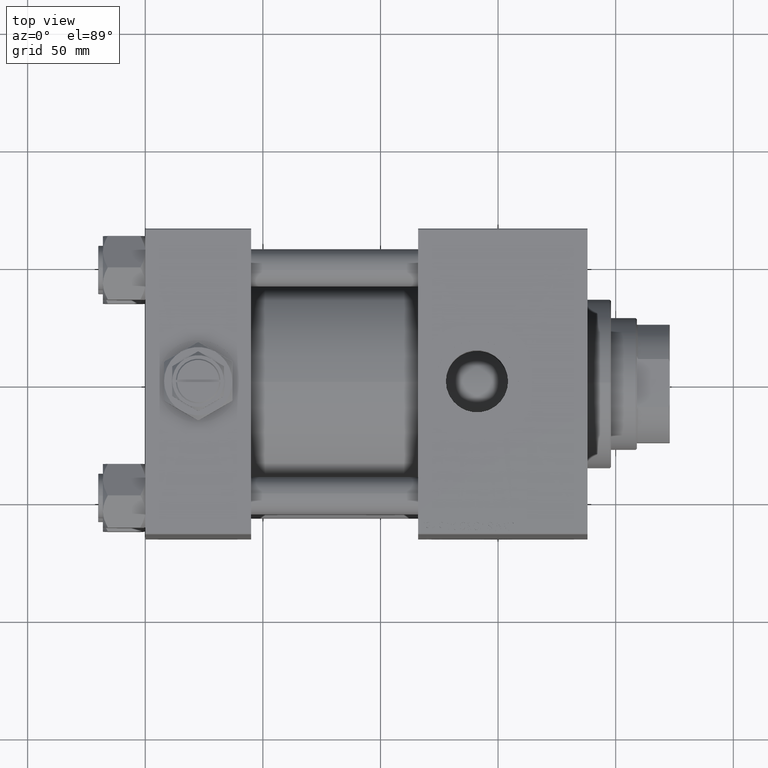
[diagram: clean part render]
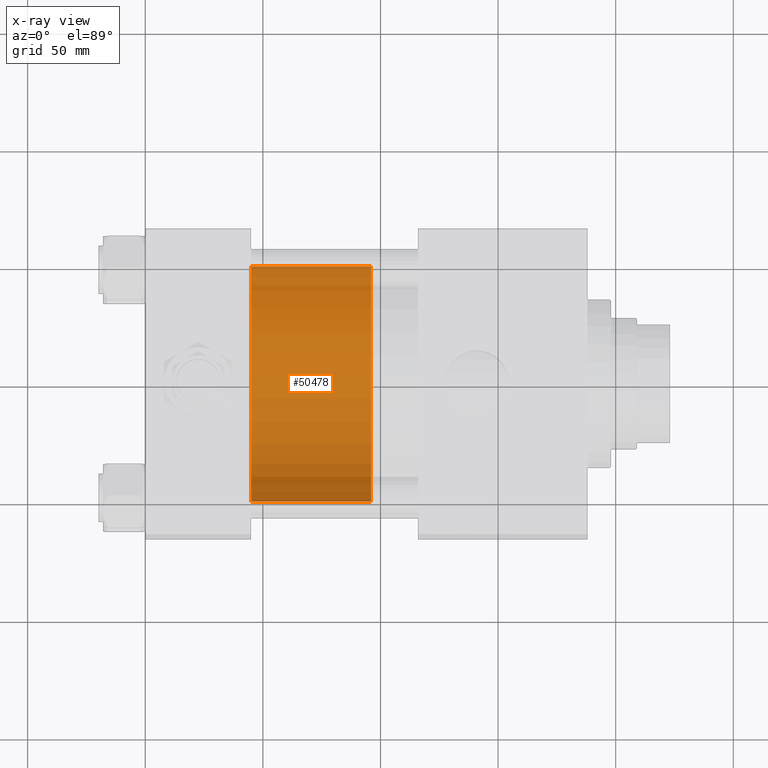
[diagram: x-ray — body ghosted, one internal face saturated and labeled with its STEP entity id]
A machine part, top view, then the same camera in x-ray: the body is ghosted and one INTERNAL B-rep face — a face not visible from any outside direction — is saturated and labeled: STEP entity #50478.
In plain terms, the highlighted cylindrical surface (partial cylindrical patch) has radius 50 mm, axis along (-1, 0, 0).
Its self-contained STEP definition (entity closure, byte-faithful):
#19 = EDGE_LOOP ( 'NONE', ( #13046, #6090, #52466, #29792 ) ) ;
#335 = CARTESIAN_POINT ( 'NONE',  ( 50.00000000000000000, 6.123233995736766085E-15, 51.00000000000000000 ) ) ;
#682 = VERTEX_POINT ( 'NONE', #31292 ) ;
#4112 = DIRECTION ( 'NONE',  ( 0.000000000000000000, 0.000000000000000000, 1.000000000000000000 ) ) ;
#6090 = ORIENTED_EDGE ( 'NONE', *, *, #31722, .T. ) ;
#7170 = AXIS2_PLACEMENT_3D ( 'NONE', #23043, #15014, #43143 ) ;
#7400 = CARTESIAN_POINT ( 'NONE',  ( -50.00000000000000000, 0.000000000000000000, 0.000000000000000000 ) ) ;
#7435 = DIRECTION ( 'NONE',  ( -0.000000000000000000, -0.000000000000000000, -1.000000000000000000 ) ) ;
#7683 = EDGE_CURVE ( 'NONE', #682, #29325, #10569, .T. ) ;
#7699 = LINE ( 'NONE', #28048, #12630 ) ;
#8140 = CARTESIAN_POINT ( 'NONE',  ( 0.000000000000000000, 0.000000000000000000, 51.00000000000000000 ) ) ;
#10569 = CIRCLE ( 'NONE', #7170, 50.00000000000000000 ) ;
#10668 = CARTESIAN_POINT ( 'NONE',  ( -50.00000000000000000, 0.000000000000000000, 51.00000000000000000 ) ) ;
#10682 = VECTOR ( 'NONE', #30489, 1000.000000000000000 ) ;
#12630 = VECTOR ( 'NONE', #7435, 1000.000000000000000 ) ;
#13046 = ORIENTED_EDGE ( 'NONE', *, *, #47880, .F. ) ;
#15014 = DIRECTION ( 'NONE',  ( 0.000000000000000000, 0.000000000000000000, 1.000000000000000000 ) ) ;
#23043 = CARTESIAN_POINT ( 'NONE',  ( 0.000000000000000000, 0.000000000000000000, 0.000000000000000000 ) ) ;
#23568 = CARTESIAN_POINT ( 'NONE',  ( 0.000000000000000000, 0.000000000000000000, 51.00000000000000000 ) ) ;
#25359 = EDGE_CURVE ( 'NONE', #42051, #29325, #42551, .T. ) ;
#28048 = CARTESIAN_POINT ( 'NONE',  ( 50.00000000000000000, 6.123233995736766085E-15, 51.00000000000000000 ) ) ;
#29325 = VERTEX_POINT ( 'NONE', #7400 ) ;
#29792 = ORIENTED_EDGE ( 'NONE', *, *, #25359, .F. ) ;
#30489 = DIRECTION ( 'NONE',  ( -0.000000000000000000, -0.000000000000000000, -1.000000000000000000 ) ) ;
#31292 = CARTESIAN_POINT ( 'NONE',  ( 50.00000000000000000, 6.123233995736766085E-15, 0.000000000000000000 ) ) ;
#31722 = EDGE_CURVE ( 'NONE', #45749, #682, #7699, .T. ) ;
#35787 = CARTESIAN_POINT ( 'NONE',  ( -50.00000000000000000, 0.000000000000000000, 51.00000000000000000 ) ) ;
#39379 = CYLINDRICAL_SURFACE ( 'NONE', #43958, 50.00000000000000000 ) ;
#39632 = DIRECTION ( 'NONE',  ( -1.000000000000000000, 0.000000000000000000, 0.000000000000000000 ) ) ;
#40171 = FACE_OUTER_BOUND ( 'NONE', #19, .T. ) ;
#42051 = VERTEX_POINT ( 'NONE', #35787 ) ;
#42551 = LINE ( 'NONE', #10668, #10682 ) ;
#43143 = DIRECTION ( 'NONE',  ( 1.000000000000000000, 0.000000000000000000, 0.000000000000000000 ) ) ;
#43958 = AXIS2_PLACEMENT_3D ( 'NONE', #23568, #47689, #39632 ) ;
#45749 = VERTEX_POINT ( 'NONE', #335 ) ;
#47689 = DIRECTION ( 'NONE',  ( -0.000000000000000000, -0.000000000000000000, -1.000000000000000000 ) ) ;
#47880 = EDGE_CURVE ( 'NONE', #45749, #42051, #48305, .T. ) ;
#48305 = CIRCLE ( 'NONE', #51744, 50.00000000000000000 ) ;
#49107 = DIRECTION ( 'NONE',  ( 1.000000000000000000, 0.000000000000000000, 0.000000000000000000 ) ) ;
#50478 = ADVANCED_FACE ( 'NONE', ( #40171 ), #39379, .T. ) ;
#51744 = AXIS2_PLACEMENT_3D ( 'NONE', #8140, #4112, #49107 ) ;
#52466 = ORIENTED_EDGE ( 'NONE', *, *, #7683, .T. ) ;